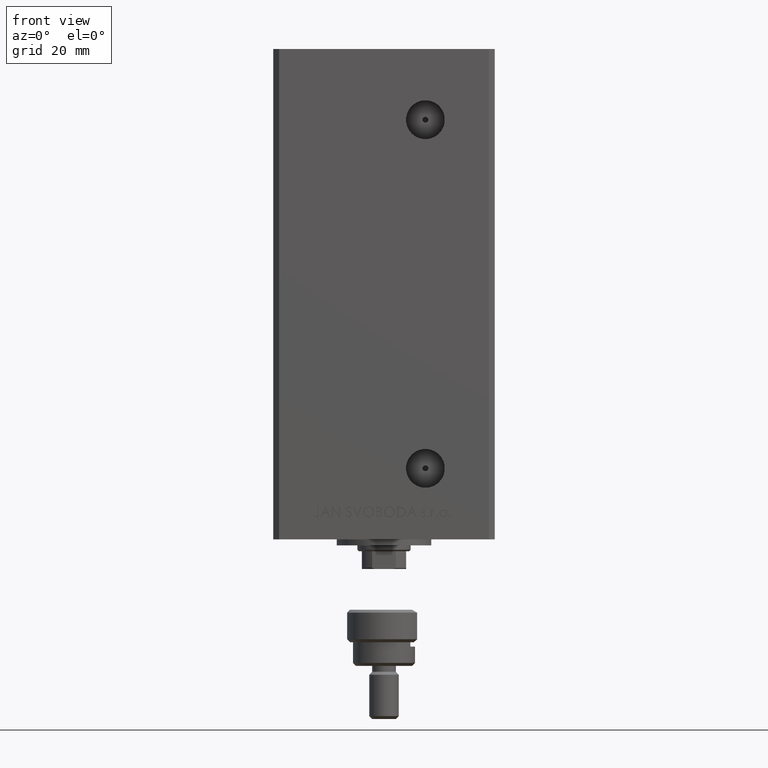
[diagram: clean part render]
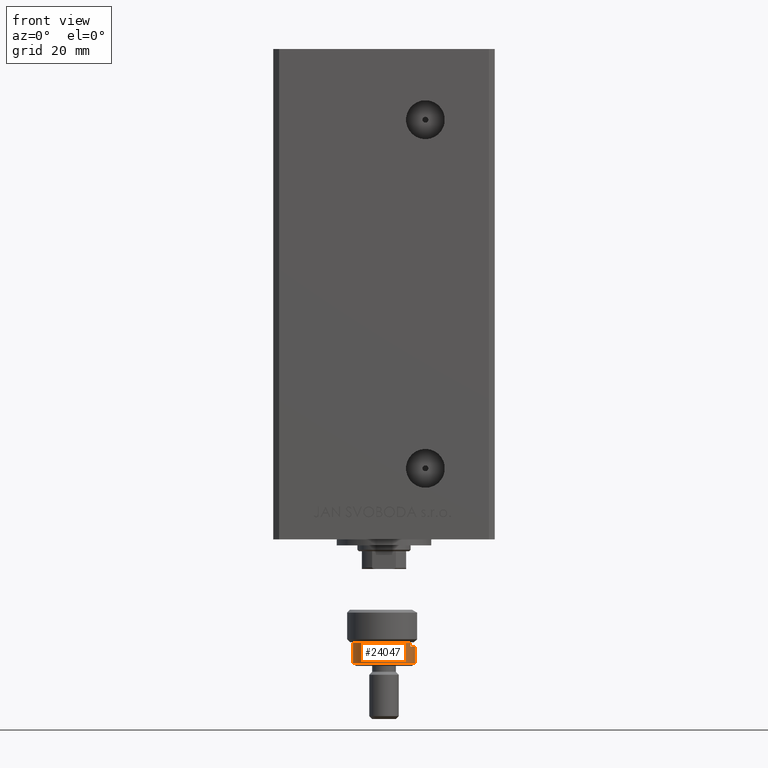
[diagram: same view with one face highlighted and labeled with its STEP entity id]
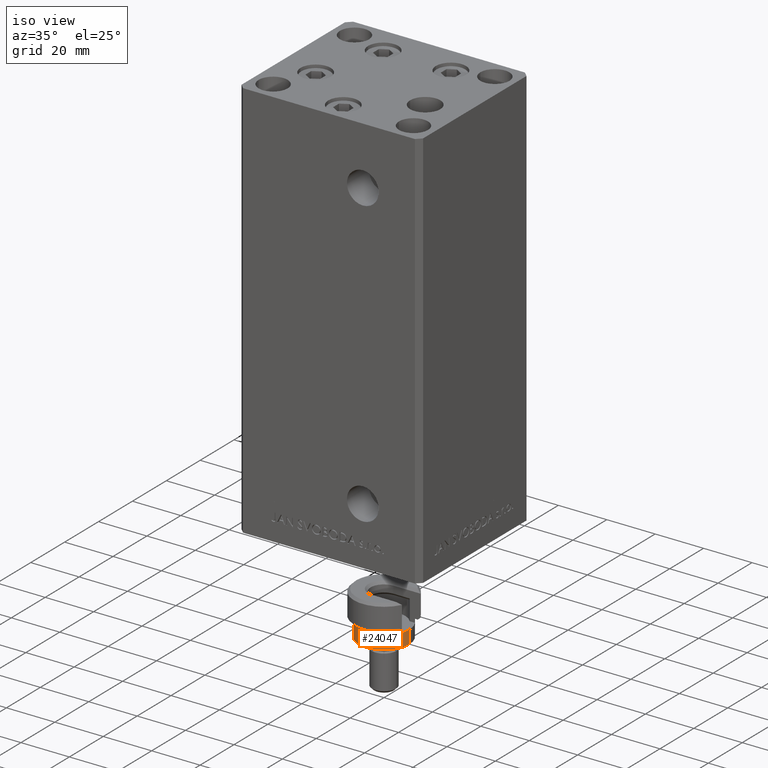
[diagram: same view with one face highlighted and labeled with its STEP entity id]
A machine part, front view. The second image highlights one B-rep face of the part: STEP entity #24047.
A second angle (iso view) of the same face is appended — the face is thin or edge-on in the first view.
In plain terms, the highlighted cylindrical surface (edge-blend (fillet) strip) has radius 10.5 mm, axis along (0, -0, 1).
Its self-contained STEP definition (entity closure, byte-faithful):
#526 = EDGE_CURVE ( 'NONE', #14424, #45701, #6465, .T. ) ;
#1690 = DIRECTION ( 'NONE',  ( -0.000000000000000000, -0.000000000000000000, -1.000000000000000000 ) ) ;
#2385 = VERTEX_POINT ( 'NONE', #39750 ) ;
#3253 = CARTESIAN_POINT ( 'NONE',  ( 0.000000000000000000, 0.000000000000000000, 12.50000000000000000 ) ) ;
#3296 = DIRECTION ( 'NONE',  ( -0.000000000000000000, -0.000000000000000000, -1.000000000000000000 ) ) ;
#4237 = CARTESIAN_POINT ( 'NONE',  ( -8.944271909999159220, -5.500000000000000000, 19.00000000000000000 ) ) ;
#6465 = CIRCLE ( 'NONE', #48308, 10.50000000000000000 ) ;
#7076 = DIRECTION ( 'NONE',  ( -0.000000000000000000, -0.000000000000000000, -1.000000000000000000 ) ) ;
#7621 = DIRECTION ( 'NONE',  ( 0.000000000000000000, 0.000000000000000000, -1.000000000000000000 ) ) ;
#8479 = EDGE_CURVE ( 'NONE', #14424, #2385, #46400, .T. ) ;
#9239 = CARTESIAN_POINT ( 'NONE',  ( 10.50000000000000000, 1.285879139104720831E-15, 11.00000000000000000 ) ) ;
#9535 = AXIS2_PLACEMENT_3D ( 'NONE', #43925, #35958, #10441 ) ;
#9656 = CYLINDRICAL_SURFACE ( 'NONE', #28109, 10.50000000000000000 ) ;
#10087 = EDGE_CURVE ( 'NONE', #43826, #45701, #46720, .T. ) ;
#10136 = ORIENTED_EDGE ( 'NONE', *, *, #23270, .T. ) ;
#10441 = DIRECTION ( 'NONE',  ( 1.000000000000000000, 0.000000000000000000, 0.000000000000000000 ) ) ;
#11115 = CARTESIAN_POINT ( 'NONE',  ( 10.50000000000000000, 1.285879139104720831E-15, 19.00000000000000000 ) ) ;
#11563 = VECTOR ( 'NONE', #7076, 1000.000000000000000 ) ;
#11619 = VECTOR ( 'NONE', #46069, 1000.000000000000000 ) ;
#13015 = ORIENTED_EDGE ( 'NONE', *, *, #526, .F. ) ;
#13142 = ORIENTED_EDGE ( 'NONE', *, *, #37346, .T. ) ;
#13167 = CARTESIAN_POINT ( 'NONE',  ( 10.50000000000000000, 1.285879139104720831E-15, 17.99999999999999645 ) ) ;
#14424 = VERTEX_POINT ( 'NONE', #29810 ) ;
#14807 = VERTEX_POINT ( 'NONE', #13167 ) ;
#15723 = VECTOR ( 'NONE', #3296, 1000.000000000000000 ) ;
#18934 = EDGE_CURVE ( 'NONE', #14807, #30924, #30407, .T. ) ;
#21241 = DIRECTION ( 'NONE',  ( -1.000000000000000000, 0.000000000000000000, 0.000000000000000000 ) ) ;
#23123 = CARTESIAN_POINT ( 'NONE',  ( -10.50000000000000000, 0.000000000000000000, 12.50000000000000000 ) ) ;
#23270 = EDGE_CURVE ( 'NONE', #14807, #43826, #37925, .T. ) ;
#24047 = ADVANCED_FACE ( 'NONE', ( #45132 ), #9656, .T. ) ;
#25662 = EDGE_LOOP ( 'NONE', ( #36405, #10136, #39380, #13015, #49280, #13142 ) ) ;
#27224 = CARTESIAN_POINT ( 'NONE',  ( -10.50000000000000000, 0.000000000000000000, 19.00000000000000000 ) ) ;
#28109 = AXIS2_PLACEMENT_3D ( 'NONE', #28969, #1690, #21241 ) ;
#28969 = CARTESIAN_POINT ( 'NONE',  ( 0.000000000000000000, 0.000000000000000000, 19.00000000000000000 ) ) ;
#29810 = CARTESIAN_POINT ( 'NONE',  ( -8.944271909999159220, -5.500000000000000000, 12.50000000000000000 ) ) ;
#30407 = LINE ( 'NONE', #11115, #11619 ) ;
#30924 = VERTEX_POINT ( 'NONE', #9239 ) ;
#31726 = CIRCLE ( 'NONE', #9535, 10.50000000000000000 ) ;
#33821 = AXIS2_PLACEMENT_3D ( 'NONE', #38193, #42539, #49741 ) ;
#34248 = CARTESIAN_POINT ( 'NONE',  ( -10.50000000000000000, 0.000000000000000000, 17.99999999999999645 ) ) ;
#35958 = DIRECTION ( 'NONE',  ( 0.000000000000000000, 0.000000000000000000, 1.000000000000000000 ) ) ;
#36405 = ORIENTED_EDGE ( 'NONE', *, *, #18934, .F. ) ;
#37346 = EDGE_CURVE ( 'NONE', #2385, #30924, #31726, .T. ) ;
#37925 = CIRCLE ( 'NONE', #33821, 10.50000000000000000 ) ;
#38193 = CARTESIAN_POINT ( 'NONE',  ( 0.000000000000000000, 0.000000000000000000, 17.99999999999999645 ) ) ;
#38981 = DIRECTION ( 'NONE',  ( -1.000000000000000000, 0.000000000000000000, 0.000000000000000000 ) ) ;
#39380 = ORIENTED_EDGE ( 'NONE', *, *, #10087, .T. ) ;
#39750 = CARTESIAN_POINT ( 'NONE',  ( -8.944271909999159220, -5.500000000000000000, 11.00000000000000000 ) ) ;
#42539 = DIRECTION ( 'NONE',  ( 0.000000000000000000, 0.000000000000000000, -1.000000000000000000 ) ) ;
#43826 = VERTEX_POINT ( 'NONE', #34248 ) ;
#43925 = CARTESIAN_POINT ( 'NONE',  ( 0.000000000000000000, 0.000000000000000000, 11.00000000000000000 ) ) ;
#45132 = FACE_OUTER_BOUND ( 'NONE', #25662, .T. ) ;
#45701 = VERTEX_POINT ( 'NONE', #23123 ) ;
#46069 = DIRECTION ( 'NONE',  ( -0.000000000000000000, -0.000000000000000000, -1.000000000000000000 ) ) ;
#46400 = LINE ( 'NONE', #4237, #11563 ) ;
#46720 = LINE ( 'NONE', #27224, #15723 ) ;
#48308 = AXIS2_PLACEMENT_3D ( 'NONE', #3253, #7621, #38981 ) ;
#49280 = ORIENTED_EDGE ( 'NONE', *, *, #8479, .T. ) ;
#49741 = DIRECTION ( 'NONE',  ( 1.000000000000000000, 0.000000000000000000, 0.000000000000000000 ) ) ;